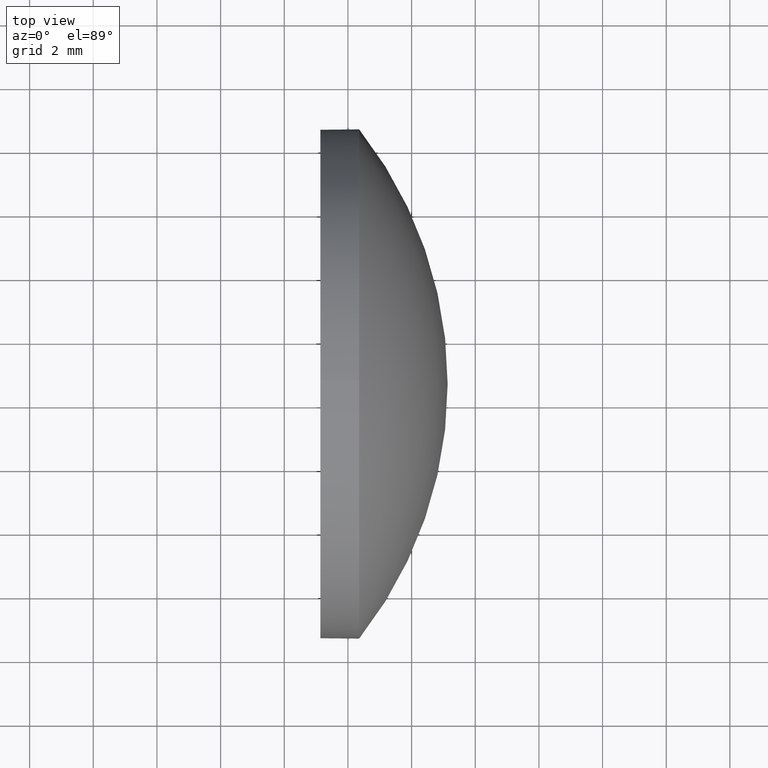
[diagram: clean part render]
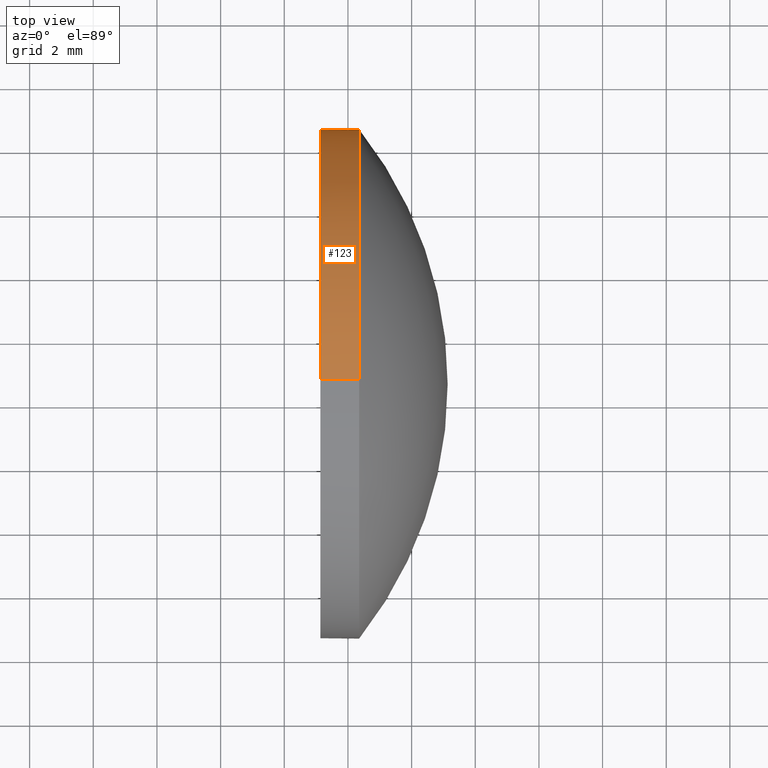
[diagram: same view with one face highlighted and labeled with its STEP entity id]
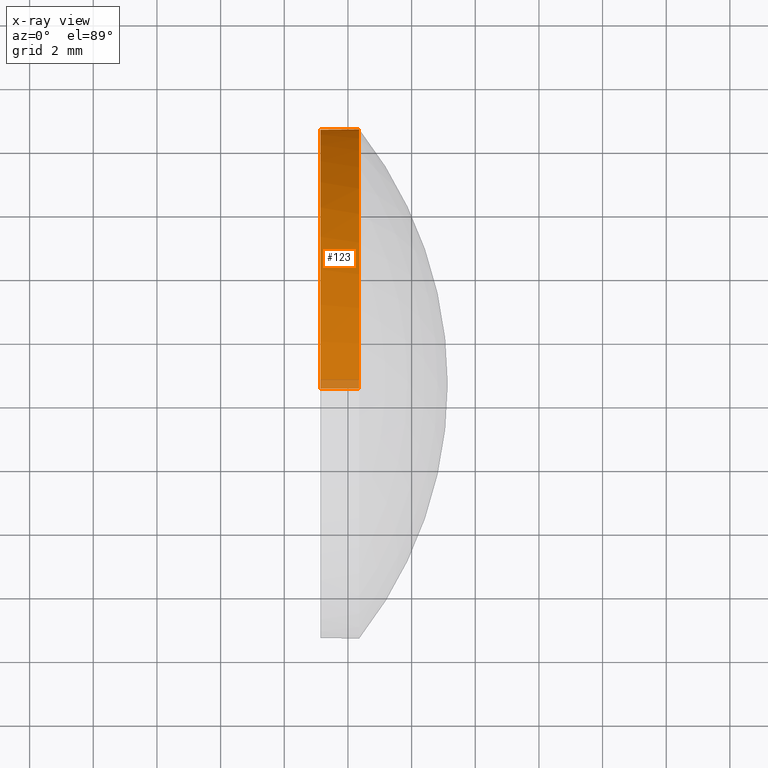
[diagram: x-ray of the same camera — body ghosted, the highlighted face saturated]
A machine part, top view. The second image highlights one B-rep face of the part: STEP entity #123.
The next image is the same camera in x-ray: the body ghosted, the highlighted face saturated — about 3% of this face is hidden behind the body in this view.
In plain terms, the highlighted cylindrical surface (partial cylindrical patch) has radius 8 mm, axis along (-1, -0, -0).
Its self-contained STEP definition (entity closure, byte-faithful):
#4 = CARTESIAN_POINT ( 'NONE',  ( 473.4849682115519700, -39.39311848752240100, -8.000000000000000000 ) ) ;
#6 = VERTEX_POINT ( 'NONE', #114 ) ;
#7 = LINE ( 'NONE', #4, #91 ) ;
#12 = EDGE_CURVE ( 'NONE', #6, #118, #7, .T. ) ;
#16 = FACE_OUTER_BOUND ( 'NONE', #78, .T. ) ;
#17 = DIRECTION ( 'NONE',  ( 0.0000000000000000000, 0.0000000000000000000, 1.000000000000000000 ) ) ;
#18 = DIRECTION ( 'NONE',  ( -1.000000000000000000, -0.0000000000000000000, -0.0000000000000000000 ) ) ;
#29 = DIRECTION ( 'NONE',  ( 0.0000000000000000000, 0.0000000000000000000, 1.000000000000000000 ) ) ;
#30 = CARTESIAN_POINT ( 'NONE',  ( 476.3529406845434600, -31.39311848752240800, 0.0000000000000000000 ) ) ;
#31 = EDGE_CURVE ( 'NONE', #62, #146, #170, .T. ) ;
#32 = ORIENTED_EDGE ( 'NONE', *, *, #12, .T. ) ;
#36 = DIRECTION ( 'NONE',  ( 0.0000000000000000000, 0.0000000000000000000, 1.000000000000000000 ) ) ;
#37 = DIRECTION ( 'NONE',  ( -1.000000000000000000, -0.0000000000000000000, -0.0000000000000000000 ) ) ;
#38 = EDGE_CURVE ( 'NONE', #146, #118, #131, .T. ) ;
#43 = CARTESIAN_POINT ( 'NONE',  ( 473.4849682115519700, -39.39311848752240100, 0.0000000000000000000 ) ) ;
#44 = ORIENTED_EDGE ( 'NONE', *, *, #183, .T. ) ;
#53 = CIRCLE ( 'NONE', #151, 8.000000000000000000 ) ;
#57 = DIRECTION ( 'NONE',  ( -1.000000000000000000, -0.0000000000000000000, -0.0000000000000000000 ) ) ;
#62 = VERTEX_POINT ( 'NONE', #144 ) ;
#71 = VERTEX_POINT ( 'NONE', #30 ) ;
#75 = ORIENTED_EDGE ( 'NONE', *, *, #31, .F. ) ;
#78 = EDGE_LOOP ( 'NONE', ( #44, #32, #149, #75, #80 ) ) ;
#79 = CYLINDRICAL_SURFACE ( 'NONE', #180, 8.000000000000000000 ) ;
#80 = ORIENTED_EDGE ( 'NONE', *, *, #134, .T. ) ;
#84 = VECTOR ( 'NONE', #18, 1000.000000000000000 ) ;
#89 = CARTESIAN_POINT ( 'NONE',  ( 473.4849682115519700, -39.39311848752240100, 8.000000000000000000 ) ) ;
#91 = VECTOR ( 'NONE', #161, 1000.000000000000000 ) ;
#97 = CARTESIAN_POINT ( 'NONE',  ( 476.3529406845434600, -39.39311848752240100, 0.0000000000000000000 ) ) ;
#106 = CARTESIAN_POINT ( 'NONE',  ( 475.1329406845434300, -39.39311848752240100, -8.000000000000000000 ) ) ;
#107 = DIRECTION ( 'NONE',  ( 0.0000000000000000000, 0.0000000000000000000, 1.000000000000000000 ) ) ;
#111 = CARTESIAN_POINT ( 'NONE',  ( 475.1329406845434300, -39.39311848752240100, 0.0000000000000000000 ) ) ;
#114 = CARTESIAN_POINT ( 'NONE',  ( 476.3529406845434600, -39.39311848752240100, -8.000000000000000000 ) ) ;
#118 = VERTEX_POINT ( 'NONE', #106 ) ;
#120 = CIRCLE ( 'NONE', #164, 8.000000000000000000 ) ;
#123 = ADVANCED_FACE ( 'NONE', ( #16 ), #79, .T. ) ;
#131 = CIRCLE ( 'NONE', #167, 8.000000000000000000 ) ;
#134 = EDGE_CURVE ( 'NONE', #62, #71, #53, .T. ) ;
#144 = CARTESIAN_POINT ( 'NONE',  ( 476.3529406845434600, -39.39311848752240100, 8.000000000000000000 ) ) ;
#146 = VERTEX_POINT ( 'NONE', #168 ) ;
#149 = ORIENTED_EDGE ( 'NONE', *, *, #38, .F. ) ;
#151 = AXIS2_PLACEMENT_3D ( 'NONE', #97, #172, #107 ) ;
#159 = DIRECTION ( 'NONE',  ( -1.000000000000000000, -0.0000000000000000000, -0.0000000000000000000 ) ) ;
#161 = DIRECTION ( 'NONE',  ( -1.000000000000000000, -0.0000000000000000000, -0.0000000000000000000 ) ) ;
#164 = AXIS2_PLACEMENT_3D ( 'NONE', #173, #37, #36 ) ;
#167 = AXIS2_PLACEMENT_3D ( 'NONE', #111, #159, #29 ) ;
#168 = CARTESIAN_POINT ( 'NONE',  ( 475.1329406845434300, -39.39311848752240100, 8.000000000000000000 ) ) ;
#170 = LINE ( 'NONE', #89, #84 ) ;
#172 = DIRECTION ( 'NONE',  ( -1.000000000000000000, -0.0000000000000000000, -0.0000000000000000000 ) ) ;
#173 = CARTESIAN_POINT ( 'NONE',  ( 476.3529406845434600, -39.39311848752240100, 0.0000000000000000000 ) ) ;
#180 = AXIS2_PLACEMENT_3D ( 'NONE', #43, #57, #17 ) ;
#183 = EDGE_CURVE ( 'NONE', #71, #6, #120, .T. ) ;